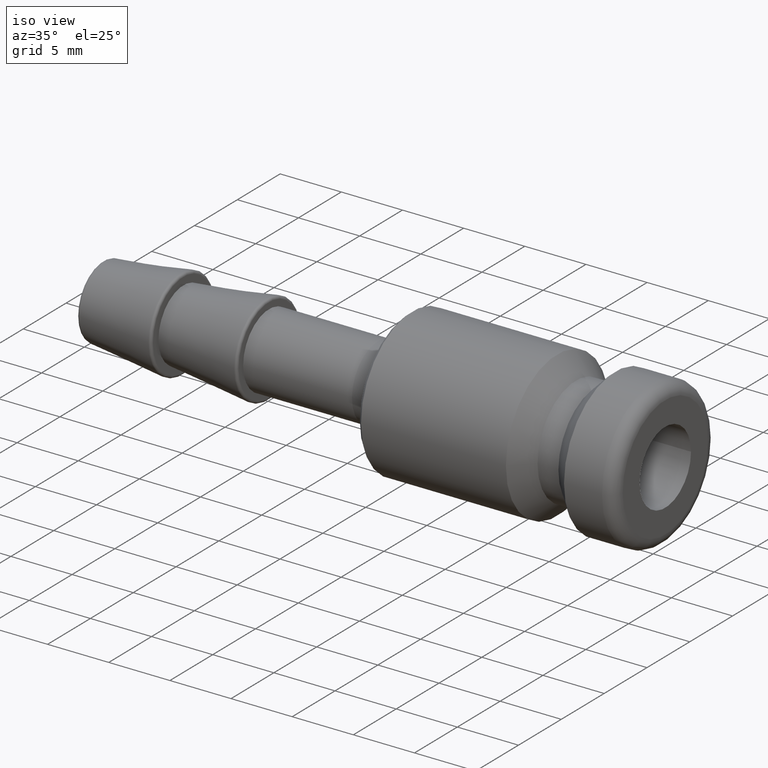
[diagram: clean part render]
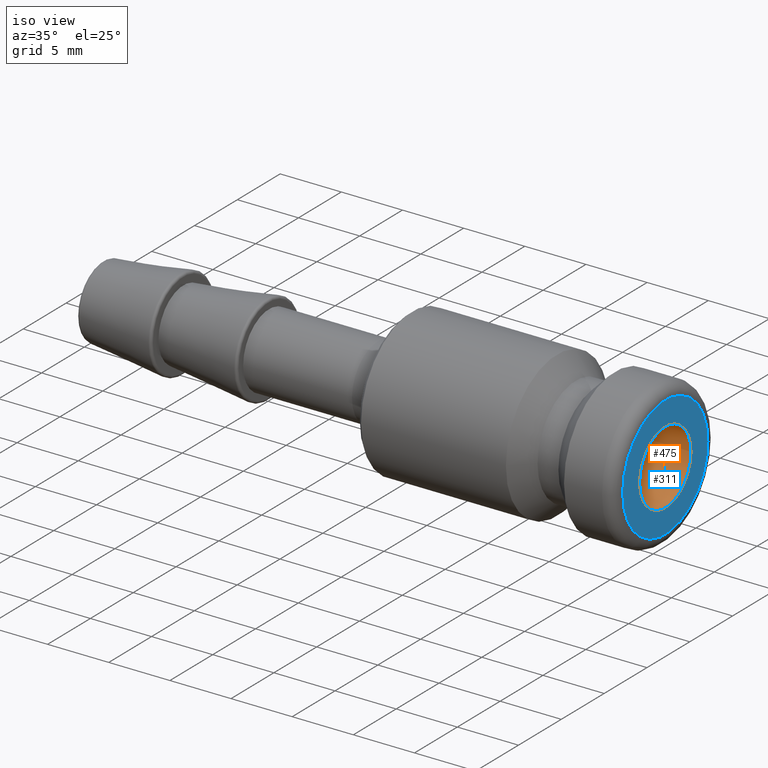
[diagram: same view with the hole feature highlighted: cylindrical wall and planar end face, labeled with their STEP entity ids]
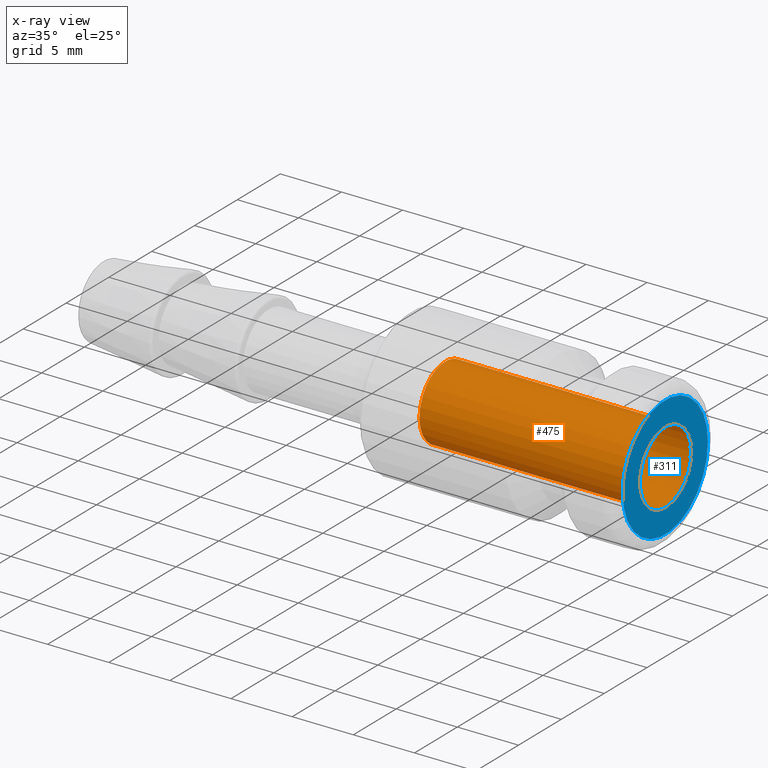
[diagram: x-ray of the same camera — body ghosted, the hole faces saturated]
A machine part, iso view. The highlighted faces form one hole feature of diameter 6 mm: the cylindrical wall (entity #475, orange) and its adjacent planar end face (entity #311, blue) — they share a circular edge in the B-rep.
The next image is the same camera in x-ray (body ghosted, the hole faces saturated) — the bore reads through the body.
Wall:
#300=CARTESIAN_POINT('',(46.000000000000007,3.000000000000005,0.0));
#301=VERTEX_POINT('',#300);
#302=CARTESIAN_POINT('',(46.000000000000007,5.633375E-015,0.0));
#303=DIRECTION('',(1.0,0.0,0.0));
#304=DIRECTION('',(0.0,1.0,0.0));
#305=AXIS2_PLACEMENT_3D('',#302,#303,#304);
#306=CIRCLE('',#305,2.999999999999999);
#307=EDGE_CURVE('',#301,#301,#306,.T.);
#456=CARTESIAN_POINT('',(37.000000000000007,4.531193E-015,0.0));
#457=DIRECTION('',(1.0,1.224647E-016,0.0));
#458=DIRECTION('',(0.0,1.0,0.0));
#459=AXIS2_PLACEMENT_3D('',#456,#457,#458);
#460=CYLINDRICAL_SURFACE('',#459,3.000000000000000);
#461=CARTESIAN_POINT('',(28.000000000000007,3.000000000000005,0.0));
#462=VERTEX_POINT('',#461);
#463=CARTESIAN_POINT('',(28.000000000000007,3.429011E-015,0.0));
#464=DIRECTION('',(1.0,0.0,0.0));
#465=DIRECTION('',(0.0,1.0,0.0));
#466=AXIS2_PLACEMENT_3D('',#463,#464,#465);
#467=CIRCLE('',#466,3.000000000000002);
#468=EDGE_CURVE('',#462,#462,#467,.T.);
#469=ORIENTED_EDGE('',*,*,#468,.F.);
#470=EDGE_LOOP('',(#469));
#471=FACE_OUTER_BOUND('',#470,.T.);
#472=ORIENTED_EDGE('',*,*,#307,.T.);
#473=EDGE_LOOP('',(#472));
#474=FACE_BOUND('',#473,.T.);
#475=ADVANCED_FACE('',(#471,#474),#460,.F.);
End face:
#260=CARTESIAN_POINT('',(46.000000000000007,4.975000000000004,-1.218524E-015));
#261=VERTEX_POINT('',#260);
#262=CARTESIAN_POINT('',(46.000000000000007,5.633375E-015,0.0));
#263=DIRECTION('',(-1.0,0.0,0.0));
#264=DIRECTION('',(0.0,-1.0,0.0));
#265=AXIS2_PLACEMENT_3D('',#262,#263,#264);
#266=CIRCLE('',#265,4.974999999999998);
#267=EDGE_CURVE('',#261,#261,#266,.T.);
#292=CARTESIAN_POINT('',(46.000000000000007,4.487500000000004,0.0));
#293=DIRECTION('',(1.0,0.0,0.0));
#294=DIRECTION('',(0.0,0.0,-1.0));
#295=AXIS2_PLACEMENT_3D('',#292,#293,#294);
#296=PLANE('',#295);
#297=ORIENTED_EDGE('',*,*,#267,.F.);
#298=EDGE_LOOP('',(#297));
#299=FACE_OUTER_BOUND('',#298,.T.);
#300=CARTESIAN_POINT('',(46.000000000000007,3.000000000000005,0.0));
#301=VERTEX_POINT('',#300);
#302=CARTESIAN_POINT('',(46.000000000000007,5.633375E-015,0.0));
#303=DIRECTION('',(1.0,0.0,0.0));
#304=DIRECTION('',(0.0,1.0,0.0));
#305=AXIS2_PLACEMENT_3D('',#302,#303,#304);
#306=CIRCLE('',#305,2.999999999999999);
#307=EDGE_CURVE('',#301,#301,#306,.T.);
#308=ORIENTED_EDGE('',*,*,#307,.F.);
#309=EDGE_LOOP('',(#308));
#310=FACE_BOUND('',#309,.T.);
#311=ADVANCED_FACE('',(#299,#310),#296,.T.);